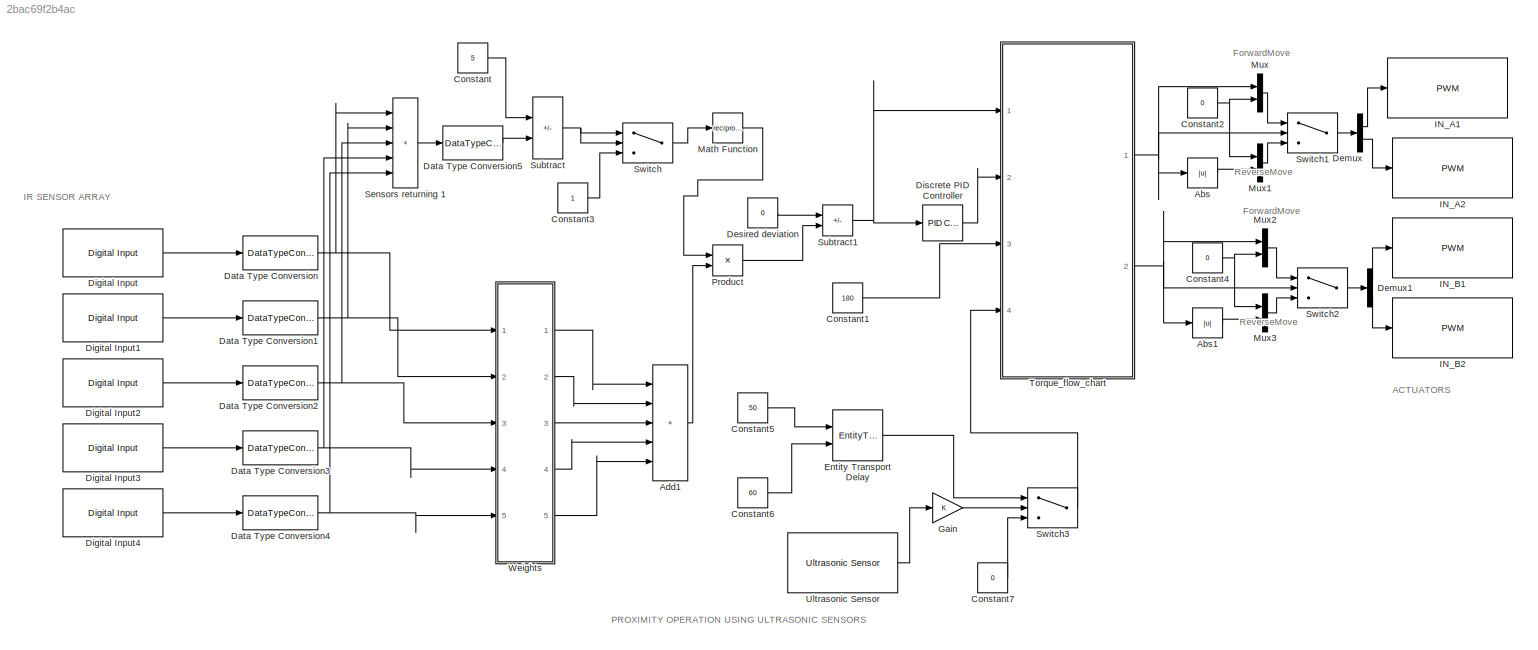
MODEL slx_2bac69f2b4ac
KIND model
CONFIG AbsTol = auto
CONFIG EnableMultiTasking = off
CONFIG FixedStep = auto
CONFIG MaxStep = auto
CONFIG MinStep = auto
CONFIG RelTol = 1e-3
CONFIG SampleTimeConstraint = Unconstrained
CONFIG SolverName = VariableStepAuto
CONFIG StartTime = 0.0
CONFIG StopTime = 10.0
BLOCK [Abs] Abs
  OutDataTypeStr = int16
  RndMeth = Round
  SaturateOnIntegerOverflow = off
BLOCK [Abs] Abs1
  OutDataTypeStr = int16
  RndMeth = Round
  SaturateOnIntegerOverflow = off
BLOCK [Sum] Add1
  AccumDataTypeStr = int8
  IconShape = rectangular
  Inputs = +++++
  OutDataTypeStr = int8
  Ports = [5, 1]
BLOCK [Constant] Constant
  OutDataTypeStr = int8
  Value = 5
BLOCK [Constant] Constant1
  Value = 180
BLOCK [Constant] Constant2
  OutDataTypeStr = int16
  Value = 0
BLOCK [Constant] Constant3
  OutDataTypeStr = int8
BLOCK [Constant] Constant4
  OutDataTypeStr = int16
  Value = 0
BLOCK [Constant] Constant5
  Value = 50
BLOCK [Constant] Constant6
  Value = 60
BLOCK [Constant] Constant7
  Value = 0
BLOCK [DataTypeConversion] Data Type Conversion
  OutDataTypeStr = int16
  RndMeth = Floor
  SaturateOnIntegerOverflow = off
BLOCK [DataTypeConversion] Data Type Conversion1
  OutDataTypeStr = int16
  RndMeth = Floor
  SaturateOnIntegerOverflow = off
BLOCK [DataTypeConversion] Data Type Conversion2
  OutDataTypeStr = int16
  RndMeth = Floor
  SaturateOnIntegerOverflow = off
BLOCK [DataTypeConversion] Data Type Conversion3
  OutDataTypeStr = int16
  RndMeth = Floor
  SaturateOnIntegerOverflow = off
BLOCK [DataTypeConversion] Data Type Conversion4
  OutDataTypeStr = int16
  RndMeth = Floor
  SaturateOnIntegerOverflow = off
BLOCK [DataTypeConversion] Data Type Conversion5
  OutDataTypeStr = int8
  RndMeth = Floor
  SaturateOnIntegerOverflow = off
BLOCK [Demux] Demux
  Outputs = 2
  Ports = [1, 2]
BLOCK [Demux] Demux1
  Outputs = 2
  Ports = [1, 2]
BLOCK [Constant] Desired deviation
  OutDataTypeStr = int8
  Value = 0
BLOCK [Reference] Digital Input  REF=arduinolib/Digital Input
  Ports = [0, 1]
  SourceBlock = arduinolib/Digital Input
  SourceProductBaseCode = ARDUINO
  SourceType = Arduino Digital Input
BLOCK [Reference] Digital Input1  REF=arduinolib/Digital Input
  Ports = [0, 1]
  SourceBlock = arduinolib/Digital Input
  SourceProductBaseCode = ARDUINO
  SourceType = Arduino Digital Input
BLOCK [Reference] Digital Input2  REF=arduinolib/Digital Input
  Ports = [0, 1]
  SourceBlock = arduinolib/Digital Input
  SourceProductBaseCode = ARDUINO
  SourceType = Arduino Digital Input
BLOCK [Reference] Digital Input3  REF=arduinolib/Digital Input
  Ports = [0, 1]
  SourceBlock = arduinolib/Digital Input
  SourceProductBaseCode = ARDUINO
  SourceType = Arduino Digital Input
BLOCK [Reference] Digital Input4  REF=arduinolib/Digital Input
  Ports = [0, 1]
  SourceBlock = arduinolib/Digital Input
  SourceProductBaseCode = ARDUINO
  SourceType = Arduino Digital Input
BLOCK [Reference] Discrete PID Controller  REF=pid_lib/PID Controller
  Ports = [1, 1]
  SourceBlock = pid_lib/PID Controller
  SourceProductBaseCode = SL
  SourceType = PID 1dof
BLOCK [EntityTransportDelay] Entity Transport Delay
  InputPortMessageModes = m,n
  OutputPortMessageModes = m
  Ports = [2, 1]
BLOCK [Gain] Gain
BLOCK [Reference] IN_A1  REF=arduinolib/PWM
  Ports = [1]
  SourceBlock = arduinolib/PWM
  SourceProductName = Simulink Support Package for Arduino Hardware
  SourceType = Arduino PWM
BLOCK [Reference] IN_A2  REF=arduinolib/PWM
  Ports = [1]
  SourceBlock = arduinolib/PWM
  SourceProductName = Simulink Support Package for Arduino Hardware
  SourceType = Arduino PWM
BLOCK [Reference] IN_B1  REF=arduinolib/PWM
  Ports = [1]
  SourceBlock = arduinolib/PWM
  SourceProductName = Simulink Support Package for Arduino Hardware
  SourceType = Arduino PWM
BLOCK [Reference] IN_B2  REF=arduinolib/PWM
  Ports = [1]
  SourceBlock = arduinolib/PWM
  SourceProductName = Simulink Support Package for Arduino Hardware
  SourceType = Arduino PWM
BLOCK [Math] Math Function
  Operator = reciprocal
  OutDataTypeStr = Inherit: Inherit via internal rule
  Ports = [1, 1]
  SignedPower = on
BLOCK [Mux] Mux
  DisplayOption = bar
  Inputs = 2
  Ports = [2, 1]
BLOCK [Mux] Mux1
  DisplayOption = bar
  Inputs = 2
  Ports = [2, 1]
BLOCK [Mux] Mux2
  DisplayOption = bar
  Inputs = 2
  Ports = [2, 1]
BLOCK [Mux] Mux3
  DisplayOption = bar
  Inputs = 2
  Ports = [2, 1]
BLOCK [Product] Product
  OutDataTypeStr = int8
  Ports = [2, 1]
  RndMeth = Round
BLOCK [Sum] Sensors returning 1
  AccumDataTypeStr = int8
  IconShape = rectangular
  Inputs = +++++
  OutDataTypeStr = int8
  Ports = [5, 1]
BLOCK [Sum] Subtract
  AccumDataTypeStr = int8
  IconShape = rectangular
  Inputs = +-
  OutDataTypeStr = int8
  Ports = [2, 1]
  RndMeth = Round
BLOCK [Sum] Subtract1
  AccumDataTypeStr = int8
  IconShape = rectangular
  Inputs = +-
  OutDataTypeStr = int8
  Ports = [2, 1]
BLOCK [Switch] Switch
  Criteria = u2 ~= 0
  InputSameDT = off
  SaturateOnIntegerOverflow = off
  Threshold = 0.0001
BLOCK [Switch] Switch1
  Criteria = u2 > Threshold
  InputSameDT = off
  SaturateOnIntegerOverflow = off
BLOCK [Switch] Switch2
  Criteria = u2 > Threshold
  InputSameDT = off
  SaturateOnIntegerOverflow = off
BLOCK [Switch] Switch3
  Criteria = u2 > Threshold
  InputSameDT = off
  SaturateOnIntegerOverflow = off
  Threshold = 10
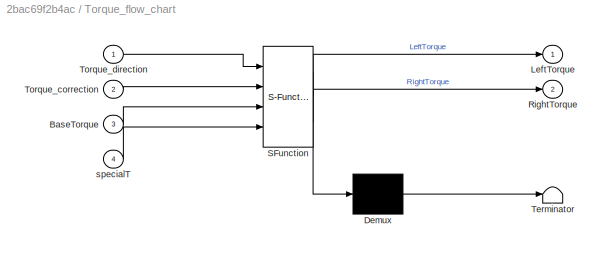
BLOCK [SubSystem] Torque_flow_chart
  ErrorFcn = Stateflow.Translate.translate
  PermitHierarchicalResolution = ExplicitOnly
  Ports = [4, 2]
  RequestExecContextInheritance = off
  SFBlockType = Chart
  TreatAsAtomicUnit = on
BLOCK [Demux] Torque_flow_chart/ Demux 
  Outputs = 1
  Ports = [1, 1]
BLOCK [S-Function] Torque_flow_chart/ SFunction 
  EnableBusSupport = on
  FunctionName = sf_sfun
  PortCounts = [4 3]
  Ports = [4, 3]
  SFcnIsStateOwnerBlock = off
  SFunctionDeploymentMode = off
  Tag = Stateflow S-Function 1
BLOCK [Terminator] Torque_flow_chart/ Terminator 
BLOCK [Inport] Torque_flow_chart/BaseTorque
  Port = 3
BLOCK [Outport] Torque_flow_chart/LeftTorque
  VectorParamsAs1DForOutWhenUnconnected = off
BLOCK [Outport] Torque_flow_chart/RightTorque
  Port = 2
  VectorParamsAs1DForOutWhenUnconnected = off
BLOCK [Inport] Torque_flow_chart/Torque_correction
  Port = 2
BLOCK [Inport] Torque_flow_chart/Torque_direction
BLOCK [Inport] Torque_flow_chart/specialT
  Port = 4
BLOCK [Reference] Ultrasonic Sensor  REF=arduinosensorlib/Ultrasonic Sensor
  Ports = [0, 1]
  SourceBlock = arduinosensorlib/Ultrasonic Sensor
  SourceProductBaseCode = ARDUINO
  SourceType = Arduino Ultrasonic Sensor
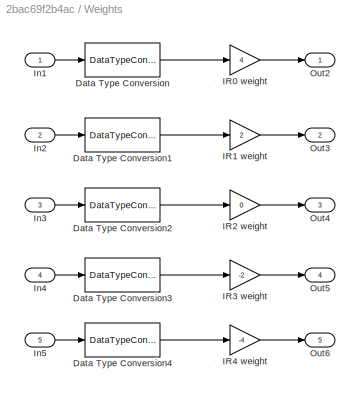
BLOCK [SubSystem] Weights
  Ports = [5, 5]
  RequestExecContextInheritance = off
BLOCK [DataTypeConversion] Weights/Data Type Conversion
  OutDataTypeStr = int8
  RndMeth = Floor
  SaturateOnIntegerOverflow = off
BLOCK [DataTypeConversion] Weights/Data Type Conversion1
  OutDataTypeStr = int8
  RndMeth = Floor
  SaturateOnIntegerOverflow = off
BLOCK [DataTypeConversion] Weights/Data Type Conversion2
  OutDataTypeStr = int8
  RndMeth = Floor
  SaturateOnIntegerOverflow = off
BLOCK [DataTypeConversion] Weights/Data Type Conversion3
  OutDataTypeStr = int8
  RndMeth = Floor
  SaturateOnIntegerOverflow = off
BLOCK [DataTypeConversion] Weights/Data Type Conversion4
  OutDataTypeStr = int8
  RndMeth = Floor
  SaturateOnIntegerOverflow = off
BLOCK [Gain] Weights/IR0 weight
  Gain = 4
  OutDataTypeStr = int8
BLOCK [Gain] Weights/IR1 weight
  Gain = 2
  OutDataTypeStr = int8
BLOCK [Gain] Weights/IR2 weight
  Gain = 0
  OutDataTypeStr = int8
BLOCK [Gain] Weights/IR3 weight
  Gain = -2
  OutDataTypeStr = int8
BLOCK [Gain] Weights/IR4 weight
  Gain = -4
  OutDataTypeStr = int8
BLOCK [Inport] Weights/In1
BLOCK [Inport] Weights/In2
  Port = 2
BLOCK [Inport] Weights/In3
  Port = 3
BLOCK [Inport] Weights/In4
  Port = 4
BLOCK [Inport] Weights/In5
  Port = 5
BLOCK [Outport] Weights/Out2
  VectorParamsAs1DForOutWhenUnconnected = off
BLOCK [Outport] Weights/Out3
  Port = 2
  VectorParamsAs1DForOutWhenUnconnected = off
BLOCK [Outport] Weights/Out4
  Port = 3
  VectorParamsAs1DForOutWhenUnconnected = off
BLOCK [Outport] Weights/Out5
  Port = 4
  VectorParamsAs1DForOutWhenUnconnected = off
BLOCK [Outport] Weights/Out6
  Port = 5
  VectorParamsAs1DForOutWhenUnconnected = off
ANNOTATION (root): PROXIMITY OPERATION USING ULTRASONIC SENSORS
ANNOTATION (root): IR SENSOR ARRAY
ANNOTATION (root): ACTUATORS
ANNOTATION (root): ForwardMove
ANNOTATION (root): ReverseMove
LINE Abs1:1 -> Mux3:2
LINE Abs:1 -> Mux1:2
LINE Add1:1 -> Product:2
LINE Constant1:1 -> Torque_flow_chart:3
NET Constant2:1 -> Mux1:1, Mux:2
LINE Constant3:1 -> Switch:3
NET Constant4:1 -> Mux2:2, Mux3:1
LINE Constant5:1 -> Entity Transport Delay:1
LINE Constant6:1 -> Entity Transport Delay:2
LINE Constant7:1 -> Switch3:3
LINE Constant:1 -> Subtract:1
NET Data Type Conversion1:1 -> Sensors returning 1:2, Weights:2
NET Data Type Conversion2:1 -> Sensors returning 1:3, Weights:3
NET Data Type Conversion3:1 -> Sensors returning 1:4, Weights:4
NET Data Type Conversion4:1 -> Sensors returning 1:5, Weights:5
LINE Data Type Conversion5:1 -> Subtract:2
NET Data Type Conversion:1 -> Sensors returning 1:1, Weights:1
LINE Demux1:1 -> IN_B1:1
LINE Demux1:2 -> IN_B2:1
LINE Demux:1 -> IN_A1:1
LINE Demux:2 -> IN_A2:1
LINE Desired deviation:1 -> Subtract1:1
LINE Digital Input1:1 -> Data Type Conversion1:1
LINE Digital Input2:1 -> Data Type Conversion2:1
LINE Digital Input3:1 -> Data Type Conversion3:1
LINE Digital Input4:1 -> Data Type Conversion4:1
LINE Digital Input:1 -> Data Type Conversion:1
LINE Discrete PID Controller:1 -> Torque_flow_chart:2
LINE Entity Transport Delay:1 -> Switch3:1
LINE Gain:1 -> Switch3:2
LINE Math Function:1 -> Product:1
LINE Mux1:1 -> Switch1:3
LINE Mux2:1 -> Switch2:1
LINE Mux3:1 -> Switch2:3
LINE Mux:1 -> Switch1:1
LINE Product:1 -> Subtract1:2
LINE Sensors returning 1:1 -> Data Type Conversion5:1
NET Subtract1:1 -> Discrete PID Controller:1, Torque_flow_chart:1
NET Subtract:1 -> Switch:1, Switch:2
LINE Switch1:1 -> Demux:1
LINE Switch2:1 -> Demux1:1
LINE Switch3:1 -> Torque_flow_chart:4
LINE Switch:1 -> Math Function:1
NET Torque_flow_chart:1 -> Abs:1, Mux:1, Switch1:2
NET Torque_flow_chart:2 -> Abs1:1, Mux2:1, Switch2:2
LINE Ultrasonic Sensor:1 -> Gain:1
LINE Weights/Data Type Conversion1:1 -> Weights/IR1 weight:1
LINE Weights/Data Type Conversion2:1 -> Weights/IR2 weight:1
LINE Weights/Data Type Conversion3:1 -> Weights/IR3 weight:1
LINE Weights/Data Type Conversion4:1 -> Weights/IR4 weight:1
LINE Weights/Data Type Conversion:1 -> Weights/IR0 weight:1
LINE Weights/IR0 weight:1 -> Weights/Out2:1
LINE Weights/IR1 weight:1 -> Weights/Out3:1
LINE Weights/IR2 weight:1 -> Weights/Out4:1
LINE Weights/IR3 weight:1 -> Weights/Out5:1
LINE Weights/IR4 weight:1 -> Weights/Out6:1
LINE Weights/In1:1 -> Weights/Data Type Conversion:1
LINE Weights/In2:1 -> Weights/Data Type Conversion1:1
LINE Weights/In3:1 -> Weights/Data Type Conversion2:1
LINE Weights/In4:1 -> Weights/Data Type Conversion3:1
LINE Weights/In5:1 -> Weights/Data Type Conversion4:1
LINE Weights:1 -> Add1:1
LINE Weights:2 -> Add1:2
LINE Weights:3 -> Add1:3
LINE Weights:4 -> Add1:4
LINE Weights:5 -> Add1:5
note: NET lines group one-source signal fan-out (src -> all destinations, sorted); 1:1 wires keep LINE
CHART Torque_flow_chart states=3 transitions=7
  STATE_LABEL 'GoStraight\n\nentry:\nLeftTorque = int16(15)+BaseTorque+specialT;\nRightTorque = int16(15)+BaseTorque+specialT;'
  STATE_LABEL 'TurnLeft\n\nentry:\nLeftTorque = BaseTorque - abs(Torque_correction);\nRightTorque = BaseTorque + abs(Torque_correction);'
  STATE_LABEL 'TurnRight\n\nentry:\nLeftTorque = BaseTorque + abs(Torque_correction);\nRightTorque = BaseTorque - abs(Torque_correction);'
CHART  states=0 transitions=0
